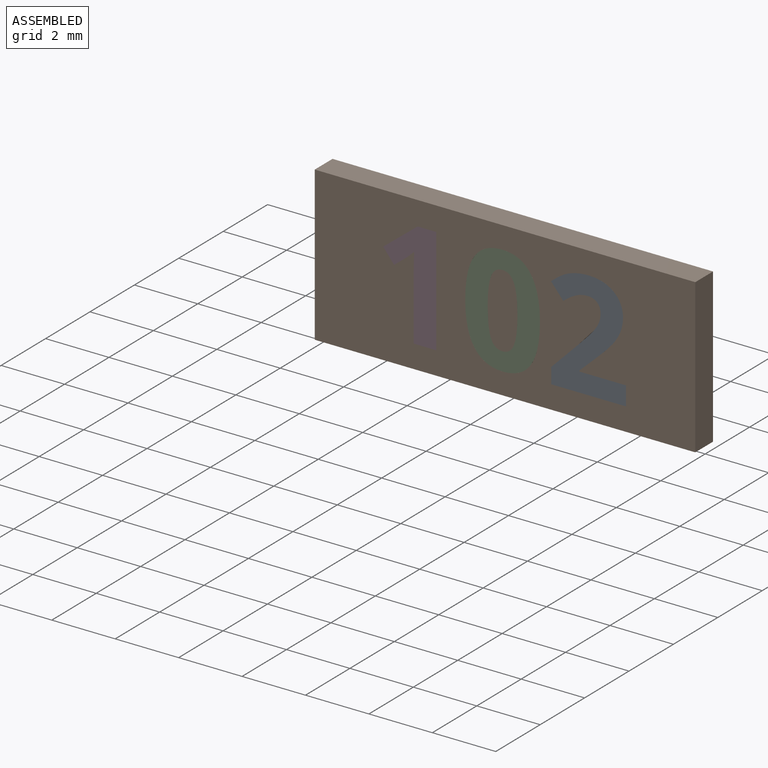
[diagram: assembled view]
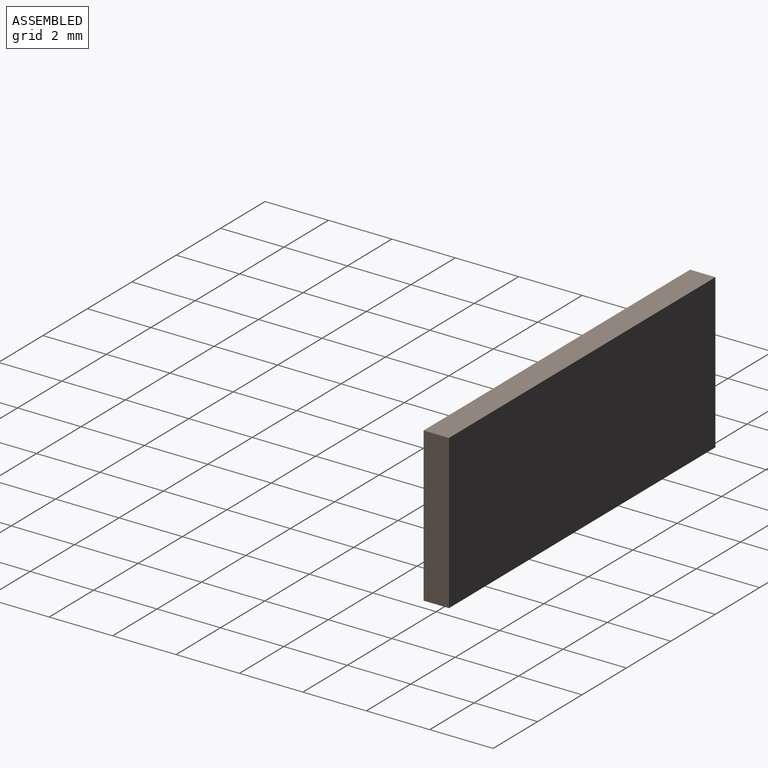
[diagram: assembled view, second angle]
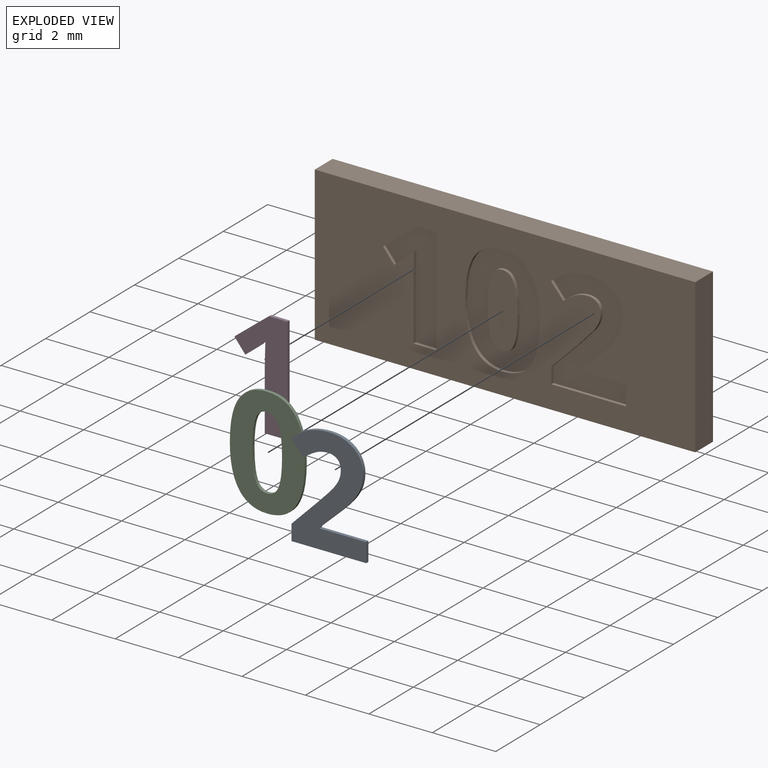
[diagram: exploded view]
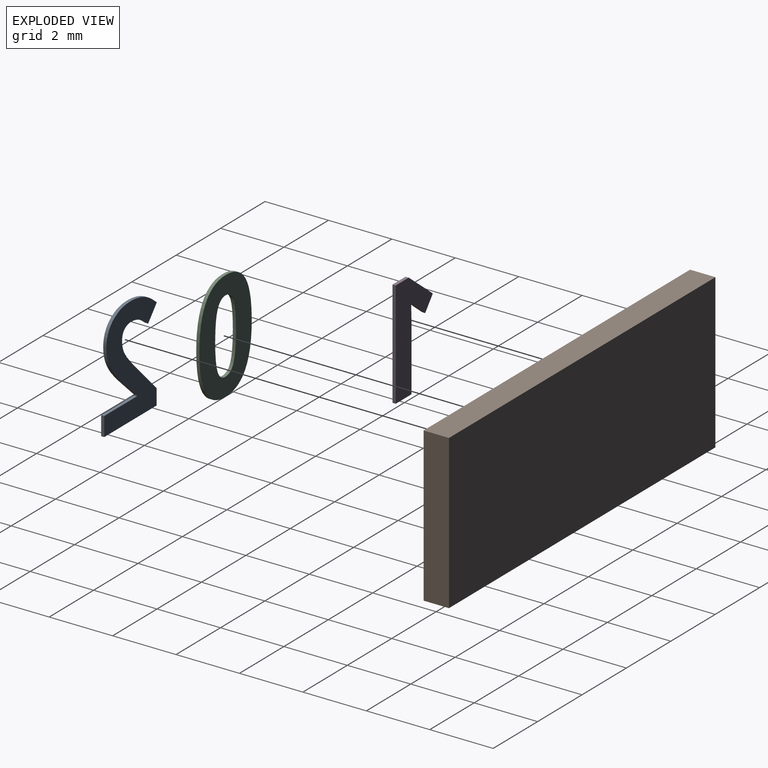
[diagram: exploded view, second angle]
ASSEMBLY  parts=4 mates=3
PART A: 26 faces, bbox 2.4x0.1x3.4 mm
  f0: plane 3.42x2.37mm, normal (0,-1,0), area 4.2mm2, adj f1,f2,f3,f4,f5,f6,f7,f8
  f1: plane 1.47x0.1mm, normal (0,0,1), area 0.1mm2, adj f0,f2,f22,f24
  f2: plane 0.1x0.03mm, normal (1,0,0), area 0mm2, adj f0,f1,f3,f22
  f3: plane 0.43x0.41mm, normal (0.69,0,-0.73), area 0.1mm2, adj f0,f2,f4,f22
  f4: extruded ~0.61x0.61mm, area 0.1mm2, adj f0,f3,f5,f22
  f5: extruded ~0.42x0.25mm, area 0mm2, adj f0,f4,f6,f22
  f6: extruded ~0.44x0.1mm, area 0mm2, adj f0,f5,f7,f22
  f7: extruded ~0.48x0.13mm, area 0.1mm2, adj f0,f6,f8,f22
  f8: extruded ~0.38x0.32mm, area 0.1mm2, adj f0,f7,f9,f22
  f9: extruded ~0.56x0.12mm, area 0.1mm2, adj f0,f8,f10,f22
  f10: extruded ~0.43x0.1mm, area 0mm2, adj f0,f9,f11,f22
  f11: extruded ~0.36x0.13mm, area 0mm2, adj f0,f10,f12,f22
  f12: extruded ~0.41x0.3mm, area 0.1mm2, adj f0,f11,f13,f22
  f13: plane 0.46x0.39mm, normal (-0.76,0,-0.65), area 0.1mm2, adj f0,f12,f14,f22
  f14: extruded ~0.39x0.26mm, area 0mm2, adj f0,f13,f15,f22
  f15: extruded ~0.38x0.1mm, area 0mm2, adj f0,f14,f16,f22
  f16: extruded ~0.3x0.1mm, area 0mm2, adj f0,f15,f17,f22
  f17: extruded ~0.3x0.11mm, area 0mm2, adj f0,f16,f18,f22
  f18: extruded ~0.26x0.1mm, area 0mm2, adj f0,f17,f19,f22
  f19: extruded ~0.28x0.17mm, area 0mm2, adj f0,f18,f20,f22
  f20: extruded ~0.53x0.49mm, area 0.1mm2, adj f0,f19,f21,f22
  f21: plane 0.86x0.85mm, normal (-0.71,0,0.7), area 0.1mm2, adj f0,f20,f22,f23
  f22: plane 3.42x2.37mm, normal (0,1,0), area 4.2mm2, adj f1,f2,f3,f4,f5,f6,f7,f8
  f23: plane 0.5x0.1mm, normal (-1,0,0), area 0mm2, adj f0,f21,f22,f25
  f24: plane 0.6x0.1mm, normal (1,0,0), area 0.1mm2, adj f0,f1,f22,f25
  f25: plane 2.36x0.1mm, normal (0,0,-1), area 0.2mm2, adj f0,f22,f23,f24
PART B: 60 faces, bbox 12x0.8x4.9 mm
  f0: plane 12x4.85mm, normal (0,-1,0), area 44.2mm2, adj f1,f2,f3,f4,f6,f7,f8,f9
  f1: plane 12x0.8mm, normal (0,0,-1), area 9.6mm2, adj f0,f2,f4,f5
  f2: plane 4.85x0.8mm, normal (1,0,0), area 3.9mm2, adj f0,f1,f3,f5
  f3: plane 12x0.8mm, normal (0,0,1), area 9.6mm2, adj f0,f2,f4,f5
  f4: plane 4.85x0.8mm, normal (-1,0,0), area 3.9mm2, adj f0,f1,f3,f5
  f5: plane 12x4.85mm, normal (0,1,0), area 58.2mm2, adj f1,f2,f3,f4
  f6: extruded ~1.3x0.3mm, area 0.1mm2, adj f0,f7,f21,f22
  f7: extruded ~0.88x0.44mm, area 0.1mm2, adj f0,f6,f8,f22
  f8: extruded ~0.89x0.42mm, area 0.1mm2, adj f0,f7,f9,f22
  f9: extruded ~1.32x0.29mm, area 0.1mm2, adj f0,f8,f10,f22
  f10: extruded ~1.29x0.3mm, area 0.1mm2, adj f0,f9,f11,f22
  f11: extruded ~0.88x0.44mm, area 0.1mm2, adj f0,f10,f12,f22
  f12: extruded ~0.89x0.42mm, area 0.1mm2, adj f0,f11,f21,f22
  f13: extruded ~0.89x0.11mm, area 0.1mm2, adj f14,f20,f22,f23
  f14: extruded ~0.36x0.27mm, area 0mm2, adj f13,f15,f22,f23
  f15: extruded ~0.36x0.27mm, area 0mm2, adj f14,f16,f22,f23
  f16: extruded ~0.89x0.11mm, area 0.1mm2, adj f15,f17,f22,f23
  f17: extruded ~0.89x0.11mm, area 0.1mm2, adj f16,f18,f22,f23
  f18: extruded ~0.36x0.27mm, area 0mm2, adj f17,f19,f22,f23
  f19: extruded ~0.36x0.27mm, area 0mm2, adj f18,f20,f22,f23
  f20: extruded ~0.89x0.11mm, area 0.1mm2, adj f13,f19,f22,f23
  f21: extruded ~1.31x0.29mm, area 0.1mm2, adj f0,f6,f12,f22
  f22: plane 3.47x2.36mm, normal (0,-1,0), area 5mm2, adj f6,f7,f8,f9,f10,f11,f12,f13
  f23: plane 2.32x0.94mm, normal (0,-1,0), area 1.8mm2, adj f13,f14,f15,f16,f17,f18,f19,f20
  f24: plane 0.6x0.1mm, normal (-1,0,0), area 0.1mm2, adj f0,f25,f47,f48
  f25: plane 1.47x0.1mm, normal (0,0,-1), area 0.1mm2, adj f0,f24,f26,f48
  f26: plane 0.1x0.03mm, normal (-1,0,0), area 0mm2, adj f0,f25,f27,f48
  f27: plane 0.43x0.41mm, normal (-0.69,0,0.73), area 0.1mm2, adj f0,f26,f28,f48
  f28: extruded ~0.61x0.61mm, area 0.1mm2, adj f0,f27,f29,f48
  f29: extruded ~0.42x0.25mm, area 0mm2, adj f0,f28,f30,f48
  f30: extruded ~0.44x0.1mm, area 0mm2, adj f0,f29,f31,f48
  f31: extruded ~0.48x0.13mm, area 0.1mm2, adj f0,f30,f32,f48
  f32: extruded ~0.38x0.32mm, area 0.1mm2, adj f0,f31,f33,f48
  f33: extruded ~0.56x0.12mm, area 0.1mm2, adj f0,f32,f34,f48
  f34: extruded ~0.43x0.1mm, area 0mm2, adj f0,f33,f35,f48
  f35: extruded ~0.36x0.13mm, area 0mm2, adj f0,f34,f36,f48
  f36: extruded ~0.41x0.3mm, area 0.1mm2, adj f0,f35,f37,f48
  f37: plane 0.46x0.39mm, normal (0.76,0,0.65), area 0.1mm2, adj f0,f36,f38,f48
  f38: extruded ~0.39x0.26mm, area 0mm2, adj f0,f37,f39,f48
  f39: extruded ~0.38x0.1mm, area 0mm2, adj f0,f38,f40,f48
  f40: extruded ~0.3x0.1mm, area 0mm2, adj f0,f39,f41,f48
  f41: extruded ~0.3x0.11mm, area 0mm2, adj f0,f40,f42,f48
  f42: extruded ~0.26x0.1mm, area 0mm2, adj f0,f41,f43,f48
  f43: extruded ~0.28x0.17mm, area 0mm2, adj f0,f42,f44,f48
  f44: extruded ~0.53x0.49mm, area 0.1mm2, adj f0,f43,f45,f48
  f45: plane 0.86x0.85mm, normal (0.71,0,-0.7), area 0.1mm2, adj f0,f44,f46,f48
  f46: plane 0.5x0.1mm, normal (1,0,0), area 0mm2, adj f0,f45,f47,f48
  f47: plane 2.36x0.1mm, normal (0,0,1), area 0.2mm2, adj f0,f24,f46,f48
  f48: plane 3.42x2.37mm, normal (0,-1,0), area 4.2mm2, adj f24,f25,f26,f27,f28,f29,f30,f31
  f49: plane 3.37x0.1mm, normal (-1,0,0), area 0.3mm2, adj f0,f50,f58,f59
  f50: plane 0.59x0.1mm, normal (0,0,-1), area 0.1mm2, adj f0,f49,f51,f59
  f51: plane 1.09x0.86mm, normal (0.62,0,-0.78), area 0.1mm2, adj f0,f50,f52,f59
  f52: plane 0.43x0.34mm, normal (0.78,0,0.63), area 0.1mm2, adj f0,f51,f53,f59
  f53: plane 0.39x0.31mm, normal (-0.63,0,0.78), area 0mm2, adj f0,f52,f54,f59
  f54: extruded ~0.25x0.23mm, area 0mm2, adj f0,f53,f55,f59
  f55: plane 0.35x0.1mm, normal (1,0,-0.03), area 0mm2, adj f0,f54,f56,f59
  f56: plane 0.32x0.1mm, normal (1,0,-0.02), area 0mm2, adj f0,f55,f57,f59
  f57: plane 1.95x0.1mm, normal (1,0,0), area 0.2mm2, adj f0,f56,f58,f59
  f58: plane 0.71x0.1mm, normal (0,0,1), area 0.1mm2, adj f0,f49,f57,f59
  f59: plane 3.37x1.67mm, normal (0,-1,0), area 2.9mm2, adj f49,f50,f51,f52,f53,f54,f55,f56
PART C: 18 faces, bbox 2.4x0.1x3.5 mm
  f0: plane 3.47x2.36mm, normal (0,-1,0), area 5mm2, adj f1,f2,f3,f4,f5,f6,f7,f8
  f1: extruded ~0.88x0.44mm, area 0.1mm2, adj f0,f2,f11,f13
  f2: extruded ~0.89x0.42mm, area 0.1mm2, adj f0,f1,f3,f11
  f3: extruded ~1.32x0.29mm, area 0.1mm2, adj f0,f2,f4,f11
  f4: extruded ~1.29x0.3mm, area 0.1mm2, adj f0,f3,f5,f11
  f5: extruded ~0.88x0.44mm, area 0.1mm2, adj f0,f4,f11,f12
  f6: extruded ~0.36x0.27mm, area 0mm2, adj f0,f7,f11,f16
  f7: extruded ~0.36x0.27mm, area 0mm2, adj f0,f6,f8,f11
  f8: extruded ~0.89x0.11mm, area 0.1mm2, adj f0,f7,f9,f11
  f9: extruded ~0.89x0.11mm, area 0.1mm2, adj f0,f8,f10,f11
  f10: extruded ~0.36x0.27mm, area 0mm2, adj f0,f9,f11,f15
  f11: plane 3.47x2.36mm, normal (0,1,0), area 5mm2, adj f1,f2,f3,f4,f5,f6,f7,f8
  f12: extruded ~0.89x0.42mm, area 0.1mm2, adj f0,f5,f11,f14
  f13: extruded ~1.3x0.3mm, area 0.1mm2, adj f0,f1,f11,f14
  f14: extruded ~1.31x0.29mm, area 0.1mm2, adj f0,f11,f12,f13
  f15: extruded ~0.36x0.27mm, area 0mm2, adj f0,f10,f11,f17
  f16: extruded ~0.89x0.11mm, area 0.1mm2, adj f0,f6,f11,f17
  f17: extruded ~0.89x0.11mm, area 0.1mm2, adj f0,f11,f15,f16
PART D: 12 faces, bbox 1.7x0.1x3.4 mm
  f0: plane 3.37x1.67mm, normal (0,-1,0), area 2.9mm2, adj f1,f2,f3,f4,f5,f6,f7,f9
  f1: plane 0.59x0.1mm, normal (0,0,1), area 0.1mm2, adj f0,f2,f8,f10
  f2: plane 1.09x0.86mm, normal (-0.62,0,0.78), area 0.1mm2, adj f0,f1,f3,f8
  f3: plane 0.43x0.34mm, normal (-0.78,0,-0.63), area 0.1mm2, adj f0,f2,f4,f8
  f4: plane 0.39x0.31mm, normal (0.63,0,-0.78), area 0mm2, adj f0,f3,f5,f8
  f5: extruded ~0.25x0.23mm, area 0mm2, adj f0,f4,f6,f8
  f6: plane 0.35x0.1mm, normal (-1,0,0.03), area 0mm2, adj f0,f5,f7,f8
  f7: plane 0.32x0.1mm, normal (-1,0,0.02), area 0mm2, adj f0,f6,f8,f9
  f8: plane 3.37x1.67mm, normal (0,1,0), area 2.9mm2, adj f1,f2,f3,f4,f5,f6,f7,f9
  f9: plane 1.95x0.1mm, normal (-1,0,0), area 0.2mm2, adj f0,f7,f8,f11
  f10: plane 3.37x0.1mm, normal (1,0,0), area 0.3mm2, adj f0,f1,f8,f11
  f11: plane 0.71x0.1mm, normal (0,0,-1), area 0.1mm2, adj f0,f8,f9,f10
PLACE A t=(1.1,0.39,0)mm
PLACE B t=(-0.02,0.39,0)mm
PLACE C t=(-2.95,0.39,0)mm
PLACE D t=(-4.58,0.39,0)mm
MATE fastened C.f0 <-> B.f23  axis (0,-1,0) through (-0.1,-0.41,-1.17)mm
MATE fastened D.f0 <-> B.f0  axis (0,-1,0) through (-2.91,-0.41,-1.7)mm
MATE fastened A.f0 <-> B.f0  axis (0,-1,0) through (1.43,-0.41,-1.7)mm
